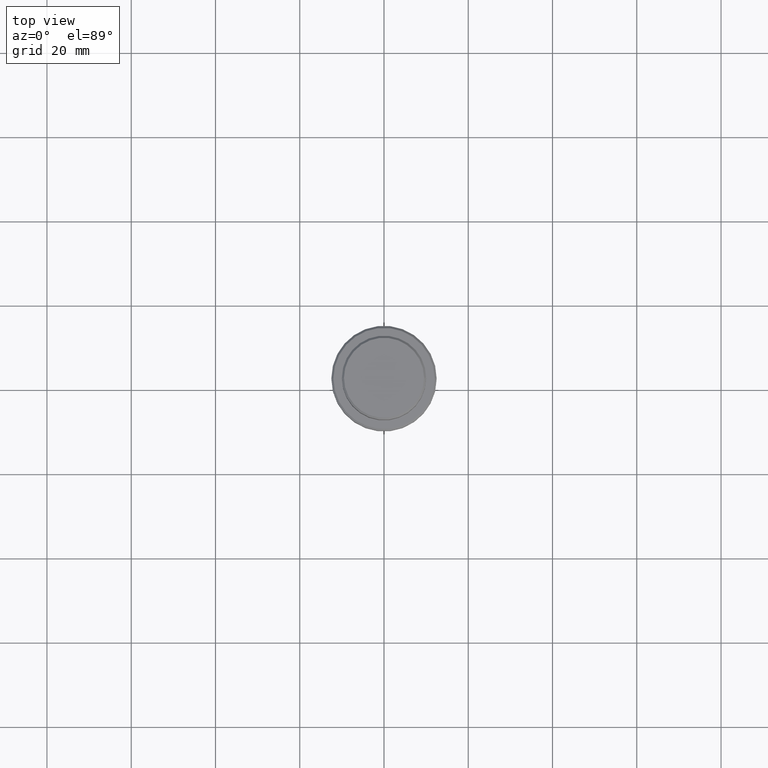
[diagram: clean part render]
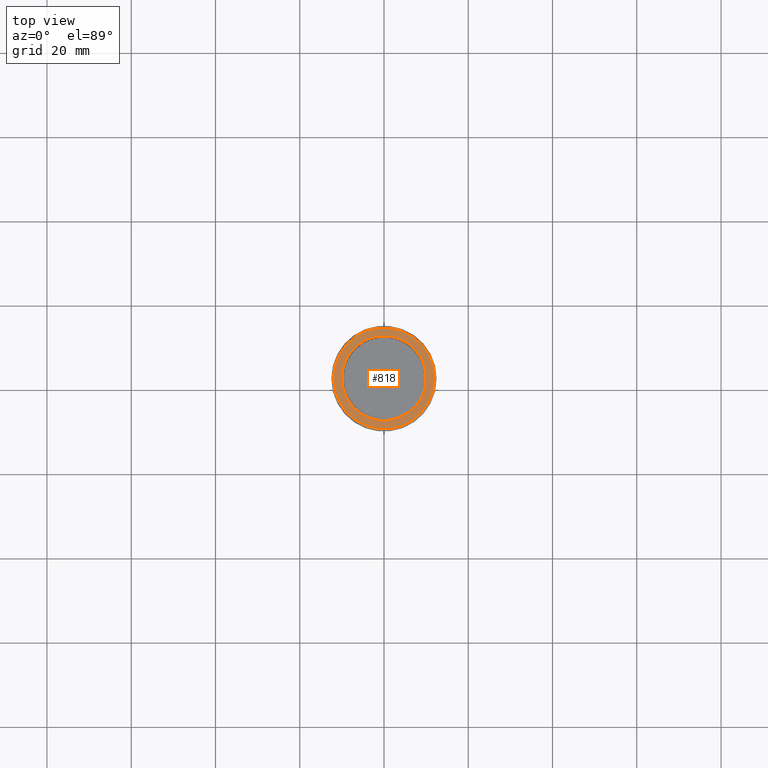
[diagram: same view with one face highlighted and labeled with its STEP entity id]
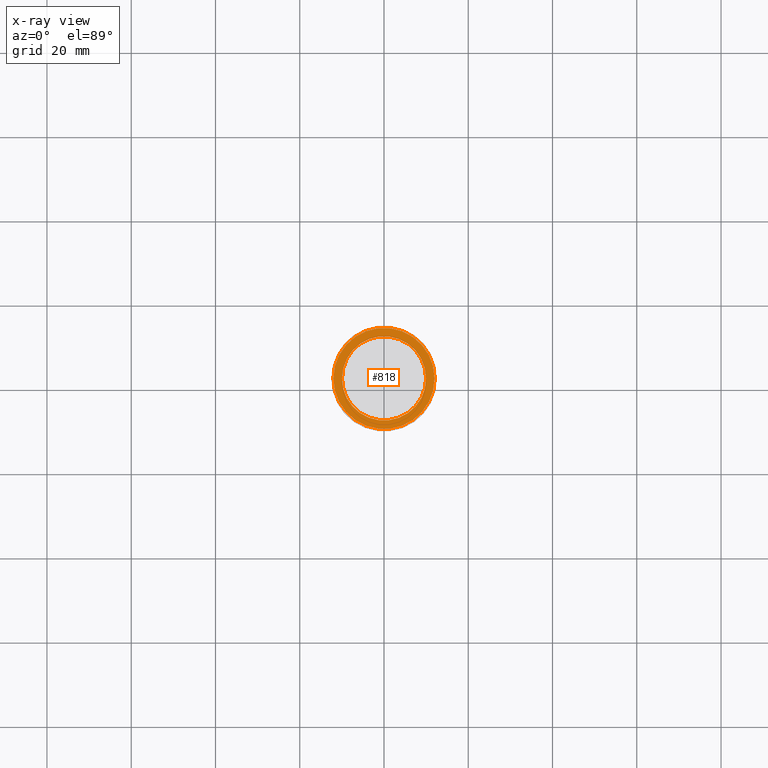
[diagram: x-ray of the same camera — body ghosted, the highlighted face saturated]
A machine part, top view. The second image highlights one B-rep face of the part: STEP entity #818.
The next image is the same camera in x-ray: the body ghosted, the highlighted face saturated — about 0% of this face is hidden behind the body in this view.
In plain terms, the highlighted planar face has unit normal (0, -0, 1).
Its self-contained STEP definition (entity closure, byte-faithful):
#6 = FACE_BOUND ( 'NONE', #1141, .T. ) ;
#25 = DIRECTION ( 'NONE',  ( 1.000000000000000000, 0.000000000000000000, 0.000000000000000000 ) ) ;
#63 = DIRECTION ( 'NONE',  ( 0.000000000000000000, 0.000000000000000000, -1.000000000000000000 ) ) ;
#89 = CARTESIAN_POINT ( 'NONE',  ( 0.000000000000000000, 0.000000000000000000, -9.000000000000000000 ) ) ;
#95 = FACE_OUTER_BOUND ( 'NONE', #1002, .T. ) ;
#165 = VERTEX_POINT ( 'NONE', #177 ) ;
#177 = CARTESIAN_POINT ( 'NONE',  ( -9.999999999999992895, 1.224646799147352468E-15, -9.000000000000000000 ) ) ;
#199 = CARTESIAN_POINT ( 'NONE',  ( 0.000000000000000000, 0.000000000000000000, -9.000000000000000000 ) ) ;
#218 = AXIS2_PLACEMENT_3D ( 'NONE', #1409, #854, #437 ) ;
#233 = EDGE_CURVE ( 'NONE', #165, #1054, #1351, .T. ) ;
#259 = AXIS2_PLACEMENT_3D ( 'NONE', #89, #63, #519 ) ;
#281 = CIRCLE ( 'NONE', #1306, 11.99999999999996980 ) ;
#370 = AXIS2_PLACEMENT_3D ( 'NONE', #199, #1359, #406 ) ;
#406 = DIRECTION ( 'NONE',  ( 1.000000000000000000, 0.000000000000000000, 0.000000000000000000 ) ) ;
#437 = DIRECTION ( 'NONE',  ( 1.000000000000000000, 0.000000000000000000, 0.000000000000000000 ) ) ;
#469 = DIRECTION ( 'NONE',  ( -0.000000000000000000, -0.000000000000000000, 1.000000000000000000 ) ) ;
#504 = VERTEX_POINT ( 'NONE', #1133 ) ;
#519 = DIRECTION ( 'NONE',  ( 1.000000000000000000, 0.000000000000000000, 0.000000000000000000 ) ) ;
#549 = ORIENTED_EDGE ( 'NONE', *, *, #898, .T. ) ;
#550 = VERTEX_POINT ( 'NONE', #1328 ) ;
#624 = EDGE_CURVE ( 'NONE', #1054, #165, #804, .T. ) ;
#645 = CARTESIAN_POINT ( 'NONE',  ( 0.000000000000000000, 0.000000000000000000, -9.000000000000000000 ) ) ;
#660 = PLANE ( 'NONE',  #218 ) ;
#782 = AXIS2_PLACEMENT_3D ( 'NONE', #645, #960, #954 ) ;
#804 = CIRCLE ( 'NONE', #370, 9.999999999999992895 ) ;
#818 = ADVANCED_FACE ( 'NONE', ( #95, #6 ), #660, .T. ) ;
#854 = DIRECTION ( 'NONE',  ( 0.000000000000000000, -0.000000000000000000, 1.000000000000000000 ) ) ;
#898 = EDGE_CURVE ( 'NONE', #550, #504, #281, .T. ) ;
#954 = DIRECTION ( 'NONE',  ( 1.000000000000000000, 0.000000000000000000, 0.000000000000000000 ) ) ;
#960 = DIRECTION ( 'NONE',  ( -0.000000000000000000, -0.000000000000000000, 1.000000000000000000 ) ) ;
#989 = ORIENTED_EDGE ( 'NONE', *, *, #233, .T. ) ;
#1002 = EDGE_LOOP ( 'NONE', ( #1301, #549 ) ) ;
#1054 = VERTEX_POINT ( 'NONE', #1106 ) ;
#1063 = EDGE_CURVE ( 'NONE', #504, #550, #1101, .T. ) ;
#1101 = CIRCLE ( 'NONE', #782, 11.99999999999996980 ) ;
#1106 = CARTESIAN_POINT ( 'NONE',  ( 9.999999999999992895, 0.000000000000000000, -9.000000000000000000 ) ) ;
#1133 = CARTESIAN_POINT ( 'NONE',  ( -11.99999999999996980, 0.000000000000000000, -9.000000000000000000 ) ) ;
#1141 = EDGE_LOOP ( 'NONE', ( #1364, #989 ) ) ;
#1179 = CARTESIAN_POINT ( 'NONE',  ( 0.000000000000000000, 0.000000000000000000, -9.000000000000000000 ) ) ;
#1301 = ORIENTED_EDGE ( 'NONE', *, *, #1063, .T. ) ;
#1306 = AXIS2_PLACEMENT_3D ( 'NONE', #1179, #469, #25 ) ;
#1328 = CARTESIAN_POINT ( 'NONE',  ( 11.99999999999996980, 1.500192328955505565E-15, -9.000000000000000000 ) ) ;
#1351 = CIRCLE ( 'NONE', #259, 9.999999999999992895 ) ;
#1359 = DIRECTION ( 'NONE',  ( 0.000000000000000000, 0.000000000000000000, -1.000000000000000000 ) ) ;
#1364 = ORIENTED_EDGE ( 'NONE', *, *, #624, .T. ) ;
#1409 = CARTESIAN_POINT ( 'NONE',  ( 0.000000000000000000, 9.499999999999992895, -9.000000000000000000 ) ) ;